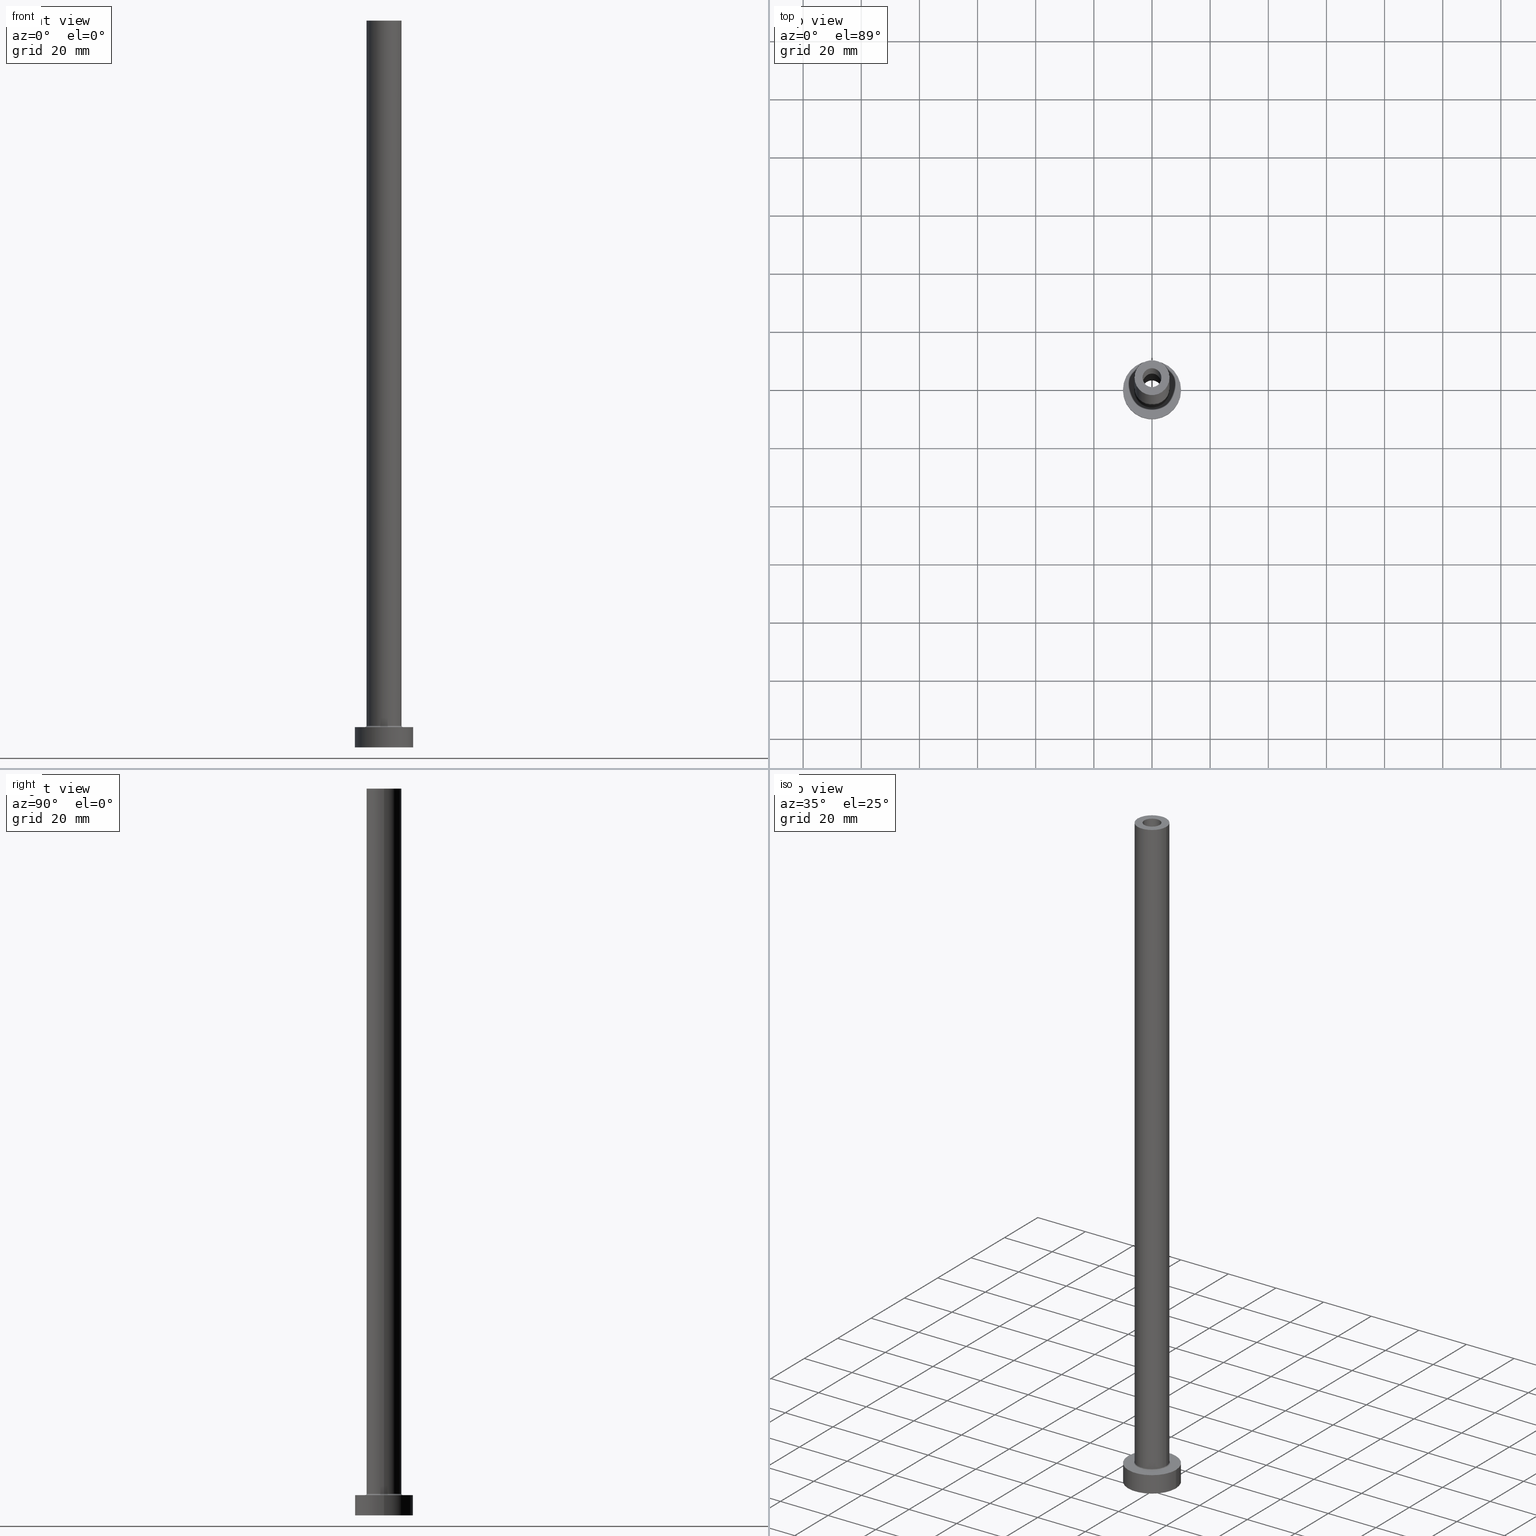
[diagram: canonical four-view strip — front | top / right | iso, engineering-drawing reading convention]
A machine part, canonical four-view strip (front | top / right | iso — engineering-drawing reading convention). The complete STEP part file that produces these views, byte-faithful:
ISO-10303-21;
HEADER;
FILE_DESCRIPTION (( 'STEP AP203' ),
    '1' );
FILE_NAME ('fe21.STEP',
    '2023-02-13T13:31:18',
    ( '' ),
    ( '' ),
    'SwSTEP 2.0',
    'SolidWorks 2019',
    '' );
FILE_SCHEMA (( 'CONFIG_CONTROL_DESIGN' ));
ENDSEC;

DATA;
#1 = CARTESIAN_POINT ( 'NONE',  ( 0.000000000000000000, 0.000000000000000000, 250.0000000000000000 ) ) ;
#2 = CC_DESIGN_PERSON_AND_ORGANIZATION_ASSIGNMENT ( #311, #102, ( #167 ) ) ;
#3 = ORIENTED_EDGE ( 'NONE', *, *, #154, .T. ) ;
#4 = DIRECTION ( 'NONE',  ( 0.000000000000000000, 0.000000000000000000, -1.000000000000000000 ) ) ;
#5 = APPROVAL_PERSON_ORGANIZATION ( #339, #275, #388 ) ;
#6 = DIRECTION ( 'NONE',  ( -1.000000000000000000, 0.000000000000000000, 0.000000000000000000 ) ) ;
#7 = FACE_OUTER_BOUND ( 'NONE', #255, .T. ) ;
#8 = CARTESIAN_POINT ( 'NONE',  ( 0.000000000000000000, 0.000000000000000000, 250.0000000000000000 ) ) ;
#9 = EDGE_LOOP ( 'NONE', ( #288, #367, #3, #207 ) ) ;
#10 = DIRECTION ( 'NONE',  ( 0.000000000000000000, 0.000000000000000000, 1.000000000000000000 ) ) ;
#11 = ORIENTED_EDGE ( 'NONE', *, *, #411, .F. ) ;
#12 = CARTESIAN_POINT ( 'NONE',  ( 3.399999999999999911, 4.163799117101000559E-16, 0.000000000000000000 ) ) ;
#13 = EDGE_LOOP ( 'NONE', ( #276, #389 ) ) ;
#14 = DIRECTION ( 'NONE',  ( 1.000000000000000000, 0.000000000000000000, 0.000000000000000000 ) ) ;
#15 = FACE_OUTER_BOUND ( 'NONE', #344, .T. ) ;
#16 = EDGE_CURVE ( 'NONE', #195, #52, #228, .T. ) ;
#17 = LOCAL_TIME ( 14, 31, 18.00000000000000000, #380 ) ;
#18 = CARTESIAN_POINT ( 'NONE',  ( 0.000000000000000000, 0.000000000000000000, 0.000000000000000000 ) ) ;
#19 = EDGE_CURVE ( 'NONE', #431, #266, #196, .T. ) ;
#20 = PRODUCT_RELATED_PRODUCT_CATEGORY ( 'detail', '', ( #68 ) ) ;
#21 = EDGE_CURVE ( 'NONE', #431, #329, #215, .T. ) ;
#22 = ORIENTED_EDGE ( 'NONE', *, *, #154, .F. ) ;
#23 = CARTESIAN_POINT ( 'NONE',  ( 3.399999999999999911, 4.163799117101000559E-16, 205.0000000000000284 ) ) ;
#24 = CARTESIAN_POINT ( 'NONE',  ( -10.00000000000000000, 0.000000000000000000, 7.000000000000000000 ) ) ;
#25 = APPLICATION_PROTOCOL_DEFINITION ( 'international standard', 'config_control_design', 1994, #140 ) ;
#26 = DIRECTION ( 'NONE',  ( 1.000000000000000000, 0.000000000000000000, 0.000000000000000000 ) ) ;
#27 = EDGE_LOOP ( 'NONE', ( #305, #172 ) ) ;
#28 = EDGE_CURVE ( 'NONE', #266, #77, #401, .T. ) ;
#29 = LINE ( 'NONE', #314, #287 ) ;
#30 = AXIS2_PLACEMENT_3D ( 'NONE', #8, #403, #219 ) ;
#31 = SECURITY_CLASSIFICATION_LEVEL ( 'unclassified' ) ;
#32 = ORIENTED_EDGE ( 'NONE', *, *, #28, .F. ) ;
#33 = AXIS2_PLACEMENT_3D ( 'NONE', #101, #206, #342 ) ;
#34 = DIRECTION ( 'NONE',  ( -0.000000000000000000, -0.000000000000000000, -1.000000000000000000 ) ) ;
#35 = LOCAL_TIME ( 14, 31, 18.00000000000000000, #62 ) ;
#36 = DIRECTION ( 'NONE',  ( -0.000000000000000000, -0.000000000000000000, -1.000000000000000000 ) ) ;
#37 = ORIENTED_EDGE ( 'NONE', *, *, #108, .T. ) ;
#38 = DIRECTION ( 'NONE',  ( 1.000000000000000000, 0.000000000000000000, 0.000000000000000000 ) ) ;
#39 = ADVANCED_BREP_SHAPE_REPRESENTATION ( 'fe21', ( #418, #51 ), #190 ) ;
#40 = CC_DESIGN_PERSON_AND_ORGANIZATION_ASSIGNMENT ( #349, #426, ( #167 ) ) ;
#41 = ORIENTED_EDGE ( 'NONE', *, *, #193, .F. ) ;
#42 = CYLINDRICAL_SURFACE ( 'NONE', #267, 6.000000000000000888 ) ;
#43 = ORIENTED_EDGE ( 'NONE', *, *, #458, .F. ) ;
#44 = ADVANCED_FACE ( 'NONE', ( #282, #363 ), #322, .T. ) ;
#45 = ORIENTED_EDGE ( 'NONE', *, *, #262, .F. ) ;
#46 = AXIS2_PLACEMENT_3D ( 'NONE', #327, #414, #120 ) ;
#47 = FACE_OUTER_BOUND ( 'NONE', #243, .T. ) ;
#48 = DATE_AND_TIME ( #159, #373 ) ;
#49 = VECTOR ( 'NONE', #135, 1000.000000000000000 ) ;
#50 = CARTESIAN_POINT ( 'NONE',  ( 0.000000000000000000, 0.000000000000000000, 205.0000000000000284 ) ) ;
#51 = AXIS2_PLACEMENT_3D ( 'NONE', #264, #299, #425 ) ;
#52 = VERTEX_POINT ( 'NONE', #366 ) ;
#53 = CARTESIAN_POINT ( 'NONE',  ( -6.500000000000000888, 7.960204194457796463E-16, 7.000000000000002665 ) ) ;
#54 = CARTESIAN_POINT ( 'NONE',  ( 0.000000000000000000, 0.000000000000000000, 7.000000000000000000 ) ) ;
#55 = EDGE_CURVE ( 'NONE', #83, #441, #298, .T. ) ;
#56 = DIRECTION ( 'NONE',  ( 1.000000000000000000, 0.000000000000000000, -0.000000000000000000 ) ) ;
#57 = AXIS2_PLACEMENT_3D ( 'NONE', #18, #151, #124 ) ;
#58 = EDGE_CURVE ( 'NONE', #66, #325, #383, .T. ) ;
#59 = LINE ( 'NONE', #24, #278 ) ;
#60 = LINE ( 'NONE', #355, #412 ) ;
#61 = CIRCLE ( 'NONE', #319, 3.250000000000000444 ) ;
#62 = COORDINATED_UNIVERSAL_TIME_OFFSET ( 1, 0, .AHEAD. ) ;
#63 = VERTEX_POINT ( 'NONE', #398 ) ;
#64 = CARTESIAN_POINT ( 'NONE',  ( 0.000000000000000000, 0.000000000000000000, 7.000000000000000000 ) ) ;
#65 = COORDINATED_UNIVERSAL_TIME_OFFSET ( 1, 0, .AHEAD. ) ;
#66 = VERTEX_POINT ( 'NONE', #23 ) ;
#67 = ADVANCED_FACE ( 'NONE', ( #345 ), #461, .T. ) ;
#68 = PRODUCT ( 'fe21', 'fe21', '', ( #98 ) ) ;
#69 = PERSON_AND_ORGANIZATION ( #119, #446 ) ;
#70 = VERTEX_POINT ( 'NONE', #144 ) ;
#71 = CARTESIAN_POINT ( 'NONE',  ( -6.000000000000000888, 0.000000000000000000, 7.500000000000007105 ) ) ;
#72 = EDGE_LOOP ( 'NONE', ( #360, #22 ) ) ;
#73 = AXIS2_PLACEMENT_3D ( 'NONE', #448, #348, #382 ) ;
#74 = CARTESIAN_POINT ( 'NONE',  ( 0.000000000000000000, 0.000000000000000000, 205.0000000000000284 ) ) ;
#75 = CC_DESIGN_PERSON_AND_ORGANIZATION_ASSIGNMENT ( #234, #384, ( #188 ) ) ;
#76 = CARTESIAN_POINT ( 'NONE',  ( 6.000000000000000888, 7.347880794884120722E-16, 7.500000000000007105 ) ) ;
#77 = VERTEX_POINT ( 'NONE', #71 ) ;
#78 = DIRECTION ( 'NONE',  ( 1.000000000000000000, 0.000000000000000000, 0.000000000000000000 ) ) ;
#79 = CARTESIAN_POINT ( 'NONE',  ( 0.000000000000000000, 0.000000000000000000, 250.0000000000000000 ) ) ;
#80 = CIRCLE ( 'NONE', #258, 6.000000000000000888 ) ;
#81 = DIRECTION ( 'NONE',  ( 1.000000000000000000, 0.000000000000000000, 0.000000000000000000 ) ) ;
#82 = CYLINDRICAL_SURFACE ( 'NONE', #334, 10.00000000000000000 ) ;
#83 = VERTEX_POINT ( 'NONE', #271 ) ;
#84 = CALENDAR_DATE ( 2023, 13, 2 ) ;
#85 = AXIS2_PLACEMENT_3D ( 'NONE', #1, #249, #149 ) ;
#86 = CYLINDRICAL_SURFACE ( 'NONE', #236, 6.000000000000000888 ) ;
#87 = DATE_AND_TIME ( #84, #17 ) ;
#88 = EDGE_CURVE ( 'NONE', #441, #83, #235, .T. ) ;
#89 = CARTESIAN_POINT ( 'NONE',  ( 10.00000000000000000, 1.224646799147353256E-15, 7.000000000000000000 ) ) ;
#90 = CARTESIAN_POINT ( 'NONE',  ( 0.000000000000000000, 0.000000000000000000, 7.000000000000000000 ) ) ;
#91 = CIRCLE ( 'NONE', #457, 10.00000000000000000 ) ;
#92 = PERSON_AND_ORGANIZATION_ROLE ( 'classification_officer' ) ;
#93 = CARTESIAN_POINT ( 'NONE',  ( 0.000000000000000000, 0.000000000000000000, 250.0000000000000000 ) ) ;
#94 = CALENDAR_DATE ( 2023, 13, 2 ) ;
#95 = LINE ( 'NONE', #419, #49 ) ;
#96 = EDGE_CURVE ( 'NONE', #325, #70, #95, .T. ) ;
#97 = AXIS2_PLACEMENT_3D ( 'NONE', #50, #259, #289 ) ;
#98 = MECHANICAL_CONTEXT ( 'NONE', #116, 'mechanical' ) ;
#99 = ORIENTED_EDGE ( 'NONE', *, *, #245, .F. ) ;
#100 = EDGE_CURVE ( 'NONE', #329, #77, #80, .T. ) ;
#101 = CARTESIAN_POINT ( 'NONE',  ( 0.000000000000000000, 0.000000000000000000, 214.6166522241370558 ) ) ;
#102 = PERSON_AND_ORGANIZATION_ROLE ( 'design_supplier' ) ;
#103 = DIRECTION ( 'NONE',  ( 1.000000000000000000, 0.000000000000000000, 0.000000000000000000 ) ) ;
#104 = APPROVAL ( #307, 'NEUR�EN�' ) ;
#105 = ORIENTED_EDGE ( 'NONE', *, *, #121, .F. ) ;
#106 = CARTESIAN_POINT ( 'NONE',  ( 0.000000000000000000, 0.000000000000000000, 0.000000000000000000 ) ) ;
#107 = CIRCLE ( 'NONE', #252, 6.500000000000000888 ) ;
#108 = EDGE_CURVE ( 'NONE', #83, #63, #274, .T. ) ;
#109 = DIRECTION ( 'NONE',  ( 1.000000000000000000, 0.000000000000000000, 0.000000000000000000 ) ) ;
#110 = EDGE_CURVE ( 'NONE', #329, #52, #242, .T. ) ;
#111 = ORIENTED_EDGE ( 'NONE', *, *, #374, .T. ) ;
#112 = CARTESIAN_POINT ( 'NONE',  ( 0.000000000000000000, 0.000000000000000000, 250.0000000000000000 ) ) ;
#113 = CARTESIAN_POINT ( 'NONE',  ( 0.000000000000000000, 0.000000000000000000, 250.0000000000000000 ) ) ;
#114 = CARTESIAN_POINT ( 'NONE',  ( 0.000000000000000000, 0.000000000000000000, 0.000000000000000000 ) ) ;
#115 = CARTESIAN_POINT ( 'NONE',  ( 6.000000000000000888, 7.347880794884120722E-16, 250.0000000000000000 ) ) ;
#116 = APPLICATION_CONTEXT ( 'configuration controlled 3d designs of mechanical parts and assemblies' ) ;
#117 = CIRCLE ( 'NONE', #386, 10.00000000000000000 ) ;
#118 = VERTEX_POINT ( 'NONE', #238 ) ;
#119 = PERSON ( 'NEUR�EN�', 'NEUR�EN�', 'NEUR�EN�', ('NEUR�EN�'), ('NEUR�EN�'), ('NEUR�EN�') ) ;
#120 = DIRECTION ( 'NONE',  ( 1.000000000000000000, 0.000000000000000000, 0.000000000000000000 ) ) ;
#121 = EDGE_CURVE ( 'NONE', #63, #260, #61, .T. ) ;
#122 = AXIS2_PLACEMENT_3D ( 'NONE', #254, #248, #244 ) ;
#123 = TOROIDAL_SURFACE ( 'NONE', #46, 6.500000000000000888, 0.5000000000000000000 ) ;
#124 = DIRECTION ( 'NONE',  ( 1.000000000000000000, 0.000000000000000000, 0.000000000000000000 ) ) ;
#125 = APPROVAL_PERSON_ORGANIZATION ( #347, #104, #455 ) ;
#126 = EDGE_CURVE ( 'NONE', #441, #260, #29, .T. ) ;
#127 = DIRECTION ( 'NONE',  ( 0.000000000000000000, 0.000000000000000000, 1.000000000000000000 ) ) ;
#128 = CIRCLE ( 'NONE', #354, 6.000000000000000888 ) ;
#129 = CC_DESIGN_SECURITY_CLASSIFICATION ( #424, ( #167 ) ) ;
#130 = DATE_TIME_ROLE ( 'creation_date' ) ;
#131 = DIRECTION ( 'NONE',  ( 0.000000000000000000, 0.000000000000000000, 1.000000000000000000 ) ) ;
#132 = DIRECTION ( 'NONE',  ( 0.000000000000000000, 0.000000000000000000, -1.000000000000000000 ) ) ;
#133 = DATE_AND_TIME ( #94, #230 ) ;
#134 = ORIENTED_EDGE ( 'NONE', *, *, #336, .F. ) ;
#135 = DIRECTION ( 'NONE',  ( 0.000000000000000000, 0.000000000000000000, -1.000000000000000000 ) ) ;
#136 = CLOSED_SHELL ( 'NONE', ( #296, #436, #146, #387, #185, #67, #279, #391, #200, #44, #351, #297, #192, #406 ) ) ;
#137 = AXIS2_PLACEMENT_3D ( 'NONE', #90, #442, #56 ) ;
#138 = COORDINATED_UNIVERSAL_TIME_OFFSET ( 1, 0, .AHEAD. ) ;
#139 = EDGE_LOOP ( 'NONE', ( #270, #460, #452, #111 ) ) ;
#140 = APPLICATION_CONTEXT ( 'configuration controlled 3d designs of mechanical parts and assemblies' ) ;
#141 = EDGE_CURVE ( 'NONE', #178, #118, #60, .T. ) ;
#142 = PERSON_AND_ORGANIZATION_ROLE ( 'design_owner' ) ;
#143 = DIRECTION ( 'NONE',  ( -1.000000000000000000, 0.000000000000000000, 0.000000000000000000 ) ) ;
#144 = CARTESIAN_POINT ( 'NONE',  ( -3.399999999999999911, 0.000000000000000000, 0.000000000000000000 ) ) ;
#145 = ORIENTED_EDGE ( 'NONE', *, *, #263, .T. ) ;
#146 = ADVANCED_FACE ( 'NONE', ( #430 ), #123, .F. ) ;
#147 = FACE_OUTER_BOUND ( 'NONE', #139, .T. ) ;
#148 = ORIENTED_EDGE ( 'NONE', *, *, #55, .T. ) ;
#149 = DIRECTION ( 'NONE',  ( -1.000000000000000000, 0.000000000000000000, 0.000000000000000000 ) ) ;
#150 = DIRECTION ( 'NONE',  ( -0.000000000000000000, -0.000000000000000000, -1.000000000000000000 ) ) ;
#151 = DIRECTION ( 'NONE',  ( 0.000000000000000000, 0.000000000000000000, 1.000000000000000000 ) ) ;
#152 = ORIENTED_EDGE ( 'NONE', *, *, #193, .T. ) ;
#153 = CYLINDRICAL_SURFACE ( 'NONE', #378, 3.250000000000000444 ) ;
#154 = EDGE_CURVE ( 'NONE', #202, #70, #404, .T. ) ;
#155 = ORIENTED_EDGE ( 'NONE', *, *, #88, .T. ) ;
#156 = PERSON_AND_ORGANIZATION ( #119, #446 ) ;
#157 = APPROVAL_PERSON_ORGANIZATION ( #156, #381, #256 ) ;
#158 = CC_DESIGN_PERSON_AND_ORGANIZATION_ASSIGNMENT ( #459, #92, ( #424 ) ) ;
#159 = CALENDAR_DATE ( 2023, 13, 2 ) ;
#160 = DIRECTION ( 'NONE',  ( 1.000000000000000000, 0.000000000000000000, 0.000000000000000000 ) ) ;
#161 = ORIENTED_EDGE ( 'NONE', *, *, #187, .F. ) ;
#162 = FACE_BOUND ( 'NONE', #27, .T. ) ;
#163 = ORIENTED_EDGE ( 'NONE', *, *, #100, .T. ) ;
#164 = VECTOR ( 'NONE', #150, 1000.000000000000000 ) ;
#165 = AXIS2_PLACEMENT_3D ( 'NONE', #257, #410, #408 ) ;
#166 = DIRECTION ( 'NONE',  ( -0.000000000000000000, -0.000000000000000000, -1.000000000000000000 ) ) ;
#167 = PRODUCT_DEFINITION_FORMATION_WITH_SPECIFIED_SOURCE ( 'LIBOVOLN�', '', #68, .NOT_KNOWN. ) ;
#168 = CYLINDRICAL_SURFACE ( 'NONE', #85, 3.250000000000000444 ) ;
#169 = AXIS2_PLACEMENT_3D ( 'NONE', #222, #181, #191 ) ;
#170 = AXIS2_PLACEMENT_3D ( 'NONE', #106, #216, #184 ) ;
#171 = APPROVAL_DATE_TIME ( #133, #275 ) ;
#172 = ORIENTED_EDGE ( 'NONE', *, *, #16, .T. ) ;
#173 = EDGE_LOOP ( 'NONE', ( #292, #214 ) ) ;
#174 = DIRECTION ( 'NONE',  ( 0.000000000000000000, 0.000000000000000000, 1.000000000000000000 ) ) ;
#175 = PRODUCT_DEFINITION_SHAPE ( 'NONE', 'NONE',  #188 ) ;
#176 = EDGE_LOOP ( 'NONE', ( #285, #312 ) ) ;
#177 = DIRECTION ( 'NONE',  ( 0.000000000000000000, 0.000000000000000000, -1.000000000000000000 ) ) ;
#178 = VERTEX_POINT ( 'NONE', #89 ) ;
#179 = EDGE_LOOP ( 'NONE', ( #358, #205, #11, #209 ) ) ;
#180 = DIRECTION ( 'NONE',  ( -1.000000000000000000, 0.000000000000000000, 0.000000000000000000 ) ) ;
#181 = DIRECTION ( 'NONE',  ( 0.000000000000000000, 0.000000000000000000, 1.000000000000000000 ) ) ;
#182 = CIRCLE ( 'NONE', #57, 10.00000000000000000 ) ;
#183 = ORIENTED_EDGE ( 'NONE', *, *, #440, .T. ) ;
#184 = DIRECTION ( 'NONE',  ( 1.000000000000000000, 0.000000000000000000, -0.000000000000000000 ) ) ;
#185 = ADVANCED_FACE ( 'NONE', ( #376 ), #82, .T. ) ;
#186 = LINE ( 'NONE', #247, #293 ) ;
#187 = EDGE_CURVE ( 'NONE', #325, #66, #301, .T. ) ;
#188 = PRODUCT_DEFINITION ( 'NEZN�M�', '', #167, #265 ) ;
#189 = APPROVAL_DATE_TIME ( #48, #381 ) ;
#190 =( GEOMETRIC_REPRESENTATION_CONTEXT ( 3 ) GLOBAL_UNCERTAINTY_ASSIGNED_CONTEXT ( ( #231 ) ) GLOBAL_UNIT_ASSIGNED_CONTEXT ( ( #304, #450, #422 ) ) REPRESENTATION_CONTEXT ( 'NONE', 'WORKASPACE' ) );
#191 = DIRECTION ( 'NONE',  ( 1.000000000000000000, 0.000000000000000000, -0.000000000000000000 ) ) ;
#192 = ADVANCED_FACE ( 'NONE', ( #333, #261 ), #369, .F. ) ;
#193 = EDGE_CURVE ( 'NONE', #456, #118, #182, .T. ) ;
#194 = DIRECTION ( 'NONE',  ( 0.000000000000000000, 0.000000000000000000, 1.000000000000000000 ) ) ;
#195 = VERTEX_POINT ( 'NONE', #53 ) ;
#196 = CIRCLE ( 'NONE', #353, 6.000000000000000888 ) ;
#197 = FACE_OUTER_BOUND ( 'NONE', #226, .T. ) ;
#198 = DIRECTION ( 'NONE',  ( 1.000000000000000000, 0.000000000000000000, 0.000000000000000000 ) ) ;
#199 = CYLINDRICAL_SURFACE ( 'NONE', #33, 3.399999999999999911 ) ;
#200 = ADVANCED_FACE ( 'NONE', ( #15 ), #86, .T. ) ;
#201 = CIRCLE ( 'NONE', #416, 0.5000000000000004441 ) ;
#202 = VERTEX_POINT ( 'NONE', #12 ) ;
#203 = DIRECTION ( 'NONE',  ( -1.000000000000000000, 0.000000000000000000, 0.000000000000000000 ) ) ;
#204 = DATE_AND_TIME ( #343, #35 ) ;
#205 = ORIENTED_EDGE ( 'NONE', *, *, #341, .T. ) ;
#206 = DIRECTION ( 'NONE',  ( 0.000000000000000000, 0.000000000000000000, -1.000000000000000000 ) ) ;
#207 = ORIENTED_EDGE ( 'NONE', *, *, #96, .F. ) ;
#208 = CARTESIAN_POINT ( 'NONE',  ( 0.000000000000000000, 0.000000000000000000, 205.0000000000000284 ) ) ;
#209 = ORIENTED_EDGE ( 'NONE', *, *, #110, .F. ) ;
#210 = DIRECTION ( 'NONE',  ( 1.224646799147353207E-16, 1.000000000000000000, -0.000000000000000000 ) ) ;
#211 = CARTESIAN_POINT ( 'NONE',  ( 0.000000000000000000, 0.000000000000000000, 7.500000000000007105 ) ) ;
#212 = ORIENTED_EDGE ( 'NONE', *, *, #262, .T. ) ;
#213 = DIRECTION ( 'NONE',  ( 1.000000000000000000, 0.000000000000000000, 0.000000000000000000 ) ) ;
#214 = ORIENTED_EDGE ( 'NONE', *, *, #88, .F. ) ;
#215 = LINE ( 'NONE', #115, #164 ) ;
#216 = DIRECTION ( 'NONE',  ( 0.000000000000000000, 0.000000000000000000, 1.000000000000000000 ) ) ;
#217 = AXIS2_PLACEMENT_3D ( 'NONE', #74, #352, #213 ) ;
#218 = DIRECTION ( 'NONE',  ( 1.000000000000000000, 0.000000000000000000, 0.000000000000000000 ) ) ;
#219 = DIRECTION ( 'NONE',  ( 1.000000000000000000, 0.000000000000000000, -0.000000000000000000 ) ) ;
#220 = CARTESIAN_POINT ( 'NONE',  ( 0.000000000000000000, 0.000000000000000000, 250.0000000000000000 ) ) ;
#221 = DATE_TIME_ROLE ( 'classification_date' ) ;
#222 = CARTESIAN_POINT ( 'NONE',  ( 0.000000000000000000, 0.000000000000000000, 205.0000000000000284 ) ) ;
#223 = ORIENTED_EDGE ( 'NONE', *, *, #100, .F. ) ;
#224 = AXIS2_PLACEMENT_3D ( 'NONE', #295, #435, #160 ) ;
#225 = CARTESIAN_POINT ( 'NONE',  ( 3.250000000000000444, 3.980102097228897245E-16, 205.0000000000000284 ) ) ;
#226 = EDGE_LOOP ( 'NONE', ( #148, #421, #105, #428 ) ) ;
#227 = CARTESIAN_POINT ( 'NONE',  ( -6.000000000000000888, 0.000000000000000000, 250.0000000000000000 ) ) ;
#228 = CIRCLE ( 'NONE', #251, 6.500000000000000888 ) ;
#229 = AXIS2_PLACEMENT_3D ( 'NONE', #281, #397, #78 ) ;
#230 = LOCAL_TIME ( 14, 31, 18.00000000000000000, #65 ) ;
#231 = UNCERTAINTY_MEASURE_WITH_UNIT (LENGTH_MEASURE( 1.000000000000000082E-05 ), #304, 'distance_accuracy_value', 'NONE');
#232 = DIRECTION ( 'NONE',  ( 0.000000000000000000, 0.000000000000000000, -1.000000000000000000 ) ) ;
#233 = CARTESIAN_POINT ( 'NONE',  ( 6.000000000000000888, 7.347880794884120722E-16, 250.0000000000000000 ) ) ;
#234 = PERSON_AND_ORGANIZATION ( #119, #446 ) ;
#235 = CIRCLE ( 'NONE', #241, 3.250000000000000444 ) ;
#236 = AXIS2_PLACEMENT_3D ( 'NONE', #113, #166, #283 ) ;
#237 = DIRECTION ( 'NONE',  ( 0.000000000000000000, 0.000000000000000000, 1.000000000000000000 ) ) ;
#238 = CARTESIAN_POINT ( 'NONE',  ( 10.00000000000000000, 1.224646799147353256E-15, 0.000000000000000000 ) ) ;
#239 = EDGE_LOOP ( 'NONE', ( #161, #449 ) ) ;
#240 = DIRECTION ( 'NONE',  ( -0.000000000000000000, -0.000000000000000000, -1.000000000000000000 ) ) ;
#241 = AXIS2_PLACEMENT_3D ( 'NONE', #93, #174, #26 ) ;
#242 = CIRCLE ( 'NONE', #73, 0.5000000000000004441 ) ;
#243 = EDGE_LOOP ( 'NONE', ( #362, #315, #163, #32 ) ) ;
#244 = DIRECTION ( 'NONE',  ( 1.000000000000000000, 0.000000000000000000, 0.000000000000000000 ) ) ;
#245 = EDGE_CURVE ( 'NONE', #266, #431, #308, .T. ) ;
#246 = ORIENTED_EDGE ( 'NONE', *, *, #263, .F. ) ;
#247 = CARTESIAN_POINT ( 'NONE',  ( 3.399999999999999911, 4.163799117101000559E-16, 214.6166522241370558 ) ) ;
#248 = DIRECTION ( 'NONE',  ( 0.000000000000000000, 0.000000000000000000, 1.000000000000000000 ) ) ;
#249 = DIRECTION ( 'NONE',  ( 0.000000000000000000, 0.000000000000000000, -1.000000000000000000 ) ) ;
#250 = CARTESIAN_POINT ( 'NONE',  ( -6.000000000000000888, 0.000000000000000000, 250.0000000000000000 ) ) ;
#251 = AXIS2_PLACEMENT_3D ( 'NONE', #320, #370, #109 ) ;
#252 = AXIS2_PLACEMENT_3D ( 'NONE', #400, #240, #361 ) ;
#253 = EDGE_LOOP ( 'NONE', ( #145, #290 ) ) ;
#254 = CARTESIAN_POINT ( 'NONE',  ( 0.000000000000000000, 0.000000000000000000, 250.0000000000000000 ) ) ;
#255 = EDGE_LOOP ( 'NONE', ( #443, #155, #37, #134 ) ) ;
#256 = APPROVAL_ROLE ( '' ) ;
#257 = CARTESIAN_POINT ( 'NONE',  ( 0.000000000000000000, 0.000000000000000000, 0.000000000000000000 ) ) ;
#258 = AXIS2_PLACEMENT_3D ( 'NONE', #211, #237, #103 ) ;
#259 = DIRECTION ( 'NONE',  ( 0.000000000000000000, 0.000000000000000000, 1.000000000000000000 ) ) ;
#260 = VERTEX_POINT ( 'NONE', #225 ) ;
#261 = FACE_OUTER_BOUND ( 'NONE', #239, .T. ) ;
#262 = EDGE_CURVE ( 'NONE', #118, #456, #91, .T. ) ;
#263 = EDGE_CURVE ( 'NONE', #332, #178, #117, .T. ) ;
#264 = CARTESIAN_POINT ( 'NONE',  ( 0.000000000000000000, 0.000000000000000000, 0.000000000000000000 ) ) ;
#265 = DESIGN_CONTEXT ( 'detailed design', #140, 'design' ) ;
#266 = VERTEX_POINT ( 'NONE', #227 ) ;
#267 = AXIS2_PLACEMENT_3D ( 'NONE', #112, #34, #180 ) ;
#268 = CC_DESIGN_APPROVAL ( #275, ( #188 ) ) ;
#269 = APPROVAL_DATE_TIME ( #447, #104 ) ;
#270 = ORIENTED_EDGE ( 'NONE', *, *, #306, .F. ) ;
#271 = CARTESIAN_POINT ( 'NONE',  ( -3.250000000000000444, 0.000000000000000000, 250.0000000000000000 ) ) ;
#272 = EDGE_LOOP ( 'NONE', ( #41, #45 ) ) ;
#273 = CARTESIAN_POINT ( 'NONE',  ( -6.500000000000000888, 7.960204194457796463E-16, 7.500000000000007105 ) ) ;
#274 = LINE ( 'NONE', #390, #433 ) ;
#275 = APPROVAL ( #451, 'NEUR�EN�' ) ;
#276 = ORIENTED_EDGE ( 'NONE', *, *, #245, .T. ) ;
#277 = CARTESIAN_POINT ( 'NONE',  ( -10.00000000000000000, 0.000000000000000000, 7.000000000000000000 ) ) ;
#278 = VECTOR ( 'NONE', #346, 1000.000000000000000 ) ;
#279 = ADVANCED_FACE ( 'NONE', ( #162, #415 ), #291, .T. ) ;
#280 = ORIENTED_EDGE ( 'NONE', *, *, #141, .T. ) ;
#281 = CARTESIAN_POINT ( 'NONE',  ( 0.000000000000000000, 0.000000000000000000, 7.500000000000007105 ) ) ;
#282 = FACE_BOUND ( 'NONE', #173, .T. ) ;
#283 = DIRECTION ( 'NONE',  ( -1.000000000000000000, 0.000000000000000000, 0.000000000000000000 ) ) ;
#284 = CARTESIAN_POINT ( 'NONE',  ( 0.000000000000000000, 0.000000000000000000, 7.000000000000000000 ) ) ;
#285 = ORIENTED_EDGE ( 'NONE', *, *, #121, .T. ) ;
#286 = AXIS2_PLACEMENT_3D ( 'NONE', #324, #10, #81 ) ;
#287 = VECTOR ( 'NONE', #232, 1000.000000000000000 ) ;
#288 = ORIENTED_EDGE ( 'NONE', *, *, #187, .T. ) ;
#289 = DIRECTION ( 'NONE',  ( 1.000000000000000000, 0.000000000000000000, 0.000000000000000000 ) ) ;
#290 = ORIENTED_EDGE ( 'NONE', *, *, #331, .T. ) ;
#291 = PLANE ( 'NONE',  #137 ) ;
#292 = ORIENTED_EDGE ( 'NONE', *, *, #55, .F. ) ;
#293 = VECTOR ( 'NONE', #177, 1000.000000000000000 ) ;
#294 = APPROVAL_STATUS ( 'not_yet_approved' ) ;
#295 = CARTESIAN_POINT ( 'NONE',  ( 0.000000000000000000, 0.000000000000000000, 250.0000000000000000 ) ) ;
#296 = ADVANCED_FACE ( 'NONE', ( #197 ), #168, .F. ) ;
#297 = ADVANCED_FACE ( 'NONE', ( #147 ), #437, .F. ) ;
#298 = CIRCLE ( 'NONE', #122, 3.250000000000000444 ) ;
#299 = DIRECTION ( 'NONE',  ( 0.000000000000000000, 0.000000000000000000, 1.000000000000000000 ) ) ;
#300 = CALENDAR_DATE ( 2023, 13, 2 ) ;
#301 = CIRCLE ( 'NONE', #97, 3.399999999999999911 ) ;
#302 = EDGE_LOOP ( 'NONE', ( #375, #246, #427, #152 ) ) ;
#303 = DIRECTION ( 'NONE',  ( 1.000000000000000000, 0.000000000000000000, 0.000000000000000000 ) ) ;
#304 =( LENGTH_UNIT ( ) NAMED_UNIT ( * ) SI_UNIT ( .MILLI., .METRE. ) );
#305 = ORIENTED_EDGE ( 'NONE', *, *, #411, .T. ) ;
#306 = EDGE_CURVE ( 'NONE', #66, #202, #186, .T. ) ;
#307 = APPROVAL_STATUS ( 'not_yet_approved' ) ;
#308 = CIRCLE ( 'NONE', #224, 6.000000000000000888 ) ;
#309 = DIRECTION ( 'NONE',  ( -0.000000000000000000, -0.000000000000000000, -1.000000000000000000 ) ) ;
#310 = CC_DESIGN_APPROVAL ( #381, ( #424 ) ) ;
#311 = PERSON_AND_ORGANIZATION ( #119, #446 ) ;
#312 = ORIENTED_EDGE ( 'NONE', *, *, #336, .T. ) ;
#313 = FACE_BOUND ( 'NONE', #72, .T. ) ;
#314 = CARTESIAN_POINT ( 'NONE',  ( 3.250000000000000444, 3.980102097228897245E-16, 250.0000000000000000 ) ) ;
#315 = ORIENTED_EDGE ( 'NONE', *, *, #21, .T. ) ;
#316 = ORIENTED_EDGE ( 'NONE', *, *, #331, .F. ) ;
#317 = FACE_OUTER_BOUND ( 'NONE', #272, .T. ) ;
#318 = DIRECTION ( 'NONE',  ( -0.000000000000000000, -0.000000000000000000, -1.000000000000000000 ) ) ;
#319 = AXIS2_PLACEMENT_3D ( 'NONE', #208, #131, #303 ) ;
#320 = CARTESIAN_POINT ( 'NONE',  ( 0.000000000000000000, 0.000000000000000000, 7.000000000000000000 ) ) ;
#321 = DIRECTION ( 'NONE',  ( 0.000000000000000000, 0.000000000000000000, -1.000000000000000000 ) ) ;
#322 = PLANE ( 'NONE',  #30 ) ;
#323 = FACE_OUTER_BOUND ( 'NONE', #393, .T. ) ;
#324 = CARTESIAN_POINT ( 'NONE',  ( 0.000000000000000000, 0.000000000000000000, 205.0000000000000284 ) ) ;
#325 = VERTEX_POINT ( 'NONE', #394 ) ;
#326 = SHAPE_DEFINITION_REPRESENTATION ( #175, #39 ) ;
#327 = CARTESIAN_POINT ( 'NONE',  ( 0.000000000000000000, 0.000000000000000000, 7.500000000000007105 ) ) ;
#328 = CC_DESIGN_DATE_AND_TIME_ASSIGNMENT ( #87, #221, ( #424 ) ) ;
#329 = VERTEX_POINT ( 'NONE', #76 ) ;
#330 = CARTESIAN_POINT ( 'NONE',  ( 0.000000000000000000, 0.000000000000000000, 7.000000000000000000 ) ) ;
#331 = EDGE_CURVE ( 'NONE', #178, #332, #364, .T. ) ;
#332 = VERTEX_POINT ( 'NONE', #277 ) ;
#333 = FACE_BOUND ( 'NONE', #176, .T. ) ;
#334 = AXIS2_PLACEMENT_3D ( 'NONE', #54, #335, #6 ) ;
#335 = DIRECTION ( 'NONE',  ( -0.000000000000000000, -0.000000000000000000, -1.000000000000000000 ) ) ;
#336 = EDGE_CURVE ( 'NONE', #260, #63, #423, .T. ) ;
#337 = CARTESIAN_POINT ( 'NONE',  ( 3.250000000000000444, 3.980102097228897245E-16, 250.0000000000000000 ) ) ;
#338 = DIRECTION ( 'NONE',  ( 0.000000000000000000, 0.000000000000000000, 1.000000000000000000 ) ) ;
#339 = PERSON_AND_ORGANIZATION ( #119, #446 ) ;
#340 = AXIS2_PLACEMENT_3D ( 'NONE', #114, #359, #218 ) ;
#341 = EDGE_CURVE ( 'NONE', #77, #195, #201, .T. ) ;
#342 = DIRECTION ( 'NONE',  ( -1.000000000000000000, 0.000000000000000000, 0.000000000000000000 ) ) ;
#343 = CALENDAR_DATE ( 2023, 13, 2 ) ;
#344 = EDGE_LOOP ( 'NONE', ( #385, #99, #350, #183 ) ) ;
#345 = FACE_OUTER_BOUND ( 'NONE', #302, .T. ) ;
#346 = DIRECTION ( 'NONE',  ( -0.000000000000000000, -0.000000000000000000, -1.000000000000000000 ) ) ;
#347 = PERSON_AND_ORGANIZATION ( #119, #446 ) ;
#348 = DIRECTION ( 'NONE',  ( 0.000000000000000000, -1.000000000000000000, 0.000000000000000000 ) ) ;
#349 = PERSON_AND_ORGANIZATION ( #119, #446 ) ;
#350 = ORIENTED_EDGE ( 'NONE', *, *, #28, .T. ) ;
#351 = ADVANCED_FACE ( 'NONE', ( #323 ), #372, .F. ) ;
#352 = DIRECTION ( 'NONE',  ( 0.000000000000000000, 0.000000000000000000, 1.000000000000000000 ) ) ;
#353 = AXIS2_PLACEMENT_3D ( 'NONE', #220, #434, #405 ) ;
#354 = AXIS2_PLACEMENT_3D ( 'NONE', #379, #338, #198 ) ;
#355 = CARTESIAN_POINT ( 'NONE',  ( 10.00000000000000000, 1.224646799147353256E-15, 7.000000000000000000 ) ) ;
#356 = LOCAL_TIME ( 14, 31, 18.00000000000000000, #138 ) ;
#357 = DIRECTION ( 'NONE',  ( 0.000000000000000000, 0.000000000000000000, 1.000000000000000000 ) ) ;
#358 = ORIENTED_EDGE ( 'NONE', *, *, #440, .F. ) ;
#359 = DIRECTION ( 'NONE',  ( -0.000000000000000000, -0.000000000000000000, -1.000000000000000000 ) ) ;
#360 = ORIENTED_EDGE ( 'NONE', *, *, #374, .F. ) ;
#361 = DIRECTION ( 'NONE',  ( 1.000000000000000000, 0.000000000000000000, 0.000000000000000000 ) ) ;
#362 = ORIENTED_EDGE ( 'NONE', *, *, #19, .F. ) ;
#363 = FACE_OUTER_BOUND ( 'NONE', #13, .T. ) ;
#364 = CIRCLE ( 'NONE', #439, 10.00000000000000000 ) ;
#365 = DIRECTION ( 'NONE',  ( -1.000000000000000000, 0.000000000000000000, 0.000000000000000000 ) ) ;
#366 = CARTESIAN_POINT ( 'NONE',  ( 6.500000000000000888, 0.000000000000000000, 7.000000000000002665 ) ) ;
#367 = ORIENTED_EDGE ( 'NONE', *, *, #306, .T. ) ;
#368 = COORDINATED_UNIVERSAL_TIME_OFFSET ( 1, 0, .AHEAD. ) ;
#369 = PLANE ( 'NONE',  #169 ) ;
#370 = DIRECTION ( 'NONE',  ( -0.000000000000000000, -0.000000000000000000, -1.000000000000000000 ) ) ;
#371 = CIRCLE ( 'NONE', #340, 3.399999999999999911 ) ;
#372 = TOROIDAL_SURFACE ( 'NONE', #229, 6.500000000000000888, 0.5000000000000000000 ) ;
#373 = LOCAL_TIME ( 14, 31, 18.00000000000000000, #368 ) ;
#374 = EDGE_CURVE ( 'NONE', #70, #202, #371, .T. ) ;
#375 = ORIENTED_EDGE ( 'NONE', *, *, #141, .F. ) ;
#376 = FACE_OUTER_BOUND ( 'NONE', #399, .T. ) ;
#377 = DIRECTION ( 'NONE',  ( 1.000000000000000000, 0.000000000000000000, 0.000000000000000000 ) ) ;
#378 = AXIS2_PLACEMENT_3D ( 'NONE', #79, #4, #365 ) ;
#379 = CARTESIAN_POINT ( 'NONE',  ( 0.000000000000000000, 0.000000000000000000, 7.500000000000007105 ) ) ;
#380 = COORDINATED_UNIVERSAL_TIME_OFFSET ( 1, 0, .AHEAD. ) ;
#381 = APPROVAL ( #294, 'NEUR�EN�' ) ;
#382 = DIRECTION ( 'NONE',  ( 0.000000000000000000, 0.000000000000000000, -1.000000000000000000 ) ) ;
#383 = CIRCLE ( 'NONE', #286, 3.399999999999999911 ) ;
#384 = PERSON_AND_ORGANIZATION_ROLE ( 'creator' ) ;
#385 = ORIENTED_EDGE ( 'NONE', *, *, #21, .F. ) ;
#386 = AXIS2_PLACEMENT_3D ( 'NONE', #330, #127, #14 ) ;
#387 = ADVANCED_FACE ( 'NONE', ( #47 ), #42, .T. ) ;
#388 = APPROVAL_ROLE ( '' ) ;
#389 = ORIENTED_EDGE ( 'NONE', *, *, #19, .T. ) ;
#390 = CARTESIAN_POINT ( 'NONE',  ( -3.250000000000000444, 0.000000000000000000, 250.0000000000000000 ) ) ;
#391 = ADVANCED_FACE ( 'NONE', ( #313, #317 ), #402, .F. ) ;
#392 = FACE_OUTER_BOUND ( 'NONE', #9, .T. ) ;
#393 = EDGE_LOOP ( 'NONE', ( #396, #223, #438, #409 ) ) ;
#394 = CARTESIAN_POINT ( 'NONE',  ( -3.399999999999999911, 0.000000000000000000, 205.0000000000000284 ) ) ;
#395 = AXIS2_PLACEMENT_3D ( 'NONE', #64, #309, #203 ) ;
#396 = ORIENTED_EDGE ( 'NONE', *, *, #341, .F. ) ;
#397 = DIRECTION ( 'NONE',  ( 0.000000000000000000, 0.000000000000000000, 1.000000000000000000 ) ) ;
#398 = CARTESIAN_POINT ( 'NONE',  ( -3.250000000000000444, 0.000000000000000000, 205.0000000000000284 ) ) ;
#399 = EDGE_LOOP ( 'NONE', ( #316, #280, #212, #43 ) ) ;
#400 = CARTESIAN_POINT ( 'NONE',  ( 0.000000000000000000, 0.000000000000000000, 7.000000000000000000 ) ) ;
#401 = LINE ( 'NONE', #250, #453 ) ;
#402 = PLANE ( 'NONE',  #170 ) ;
#403 = DIRECTION ( 'NONE',  ( 0.000000000000000000, 0.000000000000000000, 1.000000000000000000 ) ) ;
#404 = CIRCLE ( 'NONE', #165, 3.399999999999999911 ) ;
#405 = DIRECTION ( 'NONE',  ( 1.000000000000000000, 0.000000000000000000, 0.000000000000000000 ) ) ;
#406 = ADVANCED_FACE ( 'NONE', ( #7 ), #153, .F. ) ;
#407 = CC_DESIGN_DATE_AND_TIME_ASSIGNMENT ( #204, #130, ( #188 ) ) ;
#408 = DIRECTION ( 'NONE',  ( 1.000000000000000000, 0.000000000000000000, 0.000000000000000000 ) ) ;
#409 = ORIENTED_EDGE ( 'NONE', *, *, #16, .F. ) ;
#410 = DIRECTION ( 'NONE',  ( -0.000000000000000000, -0.000000000000000000, -1.000000000000000000 ) ) ;
#411 = EDGE_CURVE ( 'NONE', #52, #195, #107, .T. ) ;
#412 = VECTOR ( 'NONE', #36, 1000.000000000000000 ) ;
#413 = CC_DESIGN_APPROVAL ( #104, ( #167 ) ) ;
#414 = DIRECTION ( 'NONE',  ( 0.000000000000000000, 0.000000000000000000, 1.000000000000000000 ) ) ;
#415 = FACE_OUTER_BOUND ( 'NONE', #253, .T. ) ;
#416 = AXIS2_PLACEMENT_3D ( 'NONE', #273, #210, #429 ) ;
#417 = CC_DESIGN_PERSON_AND_ORGANIZATION_ASSIGNMENT ( #69, #142, ( #68 ) ) ;
#418 = MANIFOLD_SOLID_BREP ( 'Odebrat vysunut�m4', #136 ) ;
#419 = CARTESIAN_POINT ( 'NONE',  ( -3.399999999999999911, 0.000000000000000000, 214.6166522241370558 ) ) ;
#420 = CARTESIAN_POINT ( 'NONE',  ( -10.00000000000000000, 0.000000000000000000, 0.000000000000000000 ) ) ;
#421 = ORIENTED_EDGE ( 'NONE', *, *, #126, .T. ) ;
#422 =( NAMED_UNIT ( * ) SI_UNIT ( $, .STERADIAN. ) SOLID_ANGLE_UNIT ( ) );
#423 = CIRCLE ( 'NONE', #217, 3.250000000000000444 ) ;
#424 = SECURITY_CLASSIFICATION ( '', '', #31 ) ;
#425 = DIRECTION ( 'NONE',  ( 1.000000000000000000, 0.000000000000000000, 0.000000000000000000 ) ) ;
#426 = PERSON_AND_ORGANIZATION_ROLE ( 'creator' ) ;
#427 = ORIENTED_EDGE ( 'NONE', *, *, #458, .T. ) ;
#428 = ORIENTED_EDGE ( 'NONE', *, *, #108, .F. ) ;
#429 = DIRECTION ( 'NONE',  ( -1.000000000000000000, 1.224646799147351482E-16, 0.000000000000000000 ) ) ;
#430 = FACE_OUTER_BOUND ( 'NONE', #179, .T. ) ;
#431 = VERTEX_POINT ( 'NONE', #233 ) ;
#432 = CARTESIAN_POINT ( 'NONE',  ( 0.000000000000000000, 0.000000000000000000, 214.6166522241370558 ) ) ;
#433 = VECTOR ( 'NONE', #132, 1000.000000000000000 ) ;
#434 = DIRECTION ( 'NONE',  ( 0.000000000000000000, 0.000000000000000000, 1.000000000000000000 ) ) ;
#435 = DIRECTION ( 'NONE',  ( 0.000000000000000000, 0.000000000000000000, 1.000000000000000000 ) ) ;
#436 = ADVANCED_FACE ( 'NONE', ( #392 ), #199, .F. ) ;
#437 = CYLINDRICAL_SURFACE ( 'NONE', #444, 3.399999999999999911 ) ;
#438 = ORIENTED_EDGE ( 'NONE', *, *, #110, .T. ) ;
#439 = AXIS2_PLACEMENT_3D ( 'NONE', #284, #357, #38 ) ;
#440 = EDGE_CURVE ( 'NONE', #77, #329, #128, .T. ) ;
#441 = VERTEX_POINT ( 'NONE', #337 ) ;
#442 = DIRECTION ( 'NONE',  ( 0.000000000000000000, 0.000000000000000000, 1.000000000000000000 ) ) ;
#443 = ORIENTED_EDGE ( 'NONE', *, *, #126, .F. ) ;
#444 = AXIS2_PLACEMENT_3D ( 'NONE', #432, #321, #143 ) ;
#445 = CARTESIAN_POINT ( 'NONE',  ( 0.000000000000000000, 0.000000000000000000, 0.000000000000000000 ) ) ;
#446 = ORGANIZATION ( 'NEUR�EN�', 'NEUR�EN�', '' ) ;
#447 = DATE_AND_TIME ( #300, #356 ) ;
#448 = CARTESIAN_POINT ( 'NONE',  ( 6.500000000000000888, 0.000000000000000000, 7.500000000000007105 ) ) ;
#449 = ORIENTED_EDGE ( 'NONE', *, *, #58, .F. ) ;
#450 =( NAMED_UNIT ( * ) PLANE_ANGLE_UNIT ( ) SI_UNIT ( $, .RADIAN. ) );
#451 = APPROVAL_STATUS ( 'not_yet_approved' ) ;
#452 = ORIENTED_EDGE ( 'NONE', *, *, #96, .T. ) ;
#453 = VECTOR ( 'NONE', #318, 1000.000000000000000 ) ;
#454 = APPLICATION_PROTOCOL_DEFINITION ( 'international standard', 'config_control_design', 1994, #116 ) ;
#455 = APPROVAL_ROLE ( '' ) ;
#456 = VERTEX_POINT ( 'NONE', #420 ) ;
#457 = AXIS2_PLACEMENT_3D ( 'NONE', #445, #194, #377 ) ;
#458 = EDGE_CURVE ( 'NONE', #332, #456, #59, .T. ) ;
#459 = PERSON_AND_ORGANIZATION ( #119, #446 ) ;
#460 = ORIENTED_EDGE ( 'NONE', *, *, #58, .T. ) ;
#461 = CYLINDRICAL_SURFACE ( 'NONE', #395, 10.00000000000000000 ) ;
ENDSEC;
END-ISO-10303-21;
